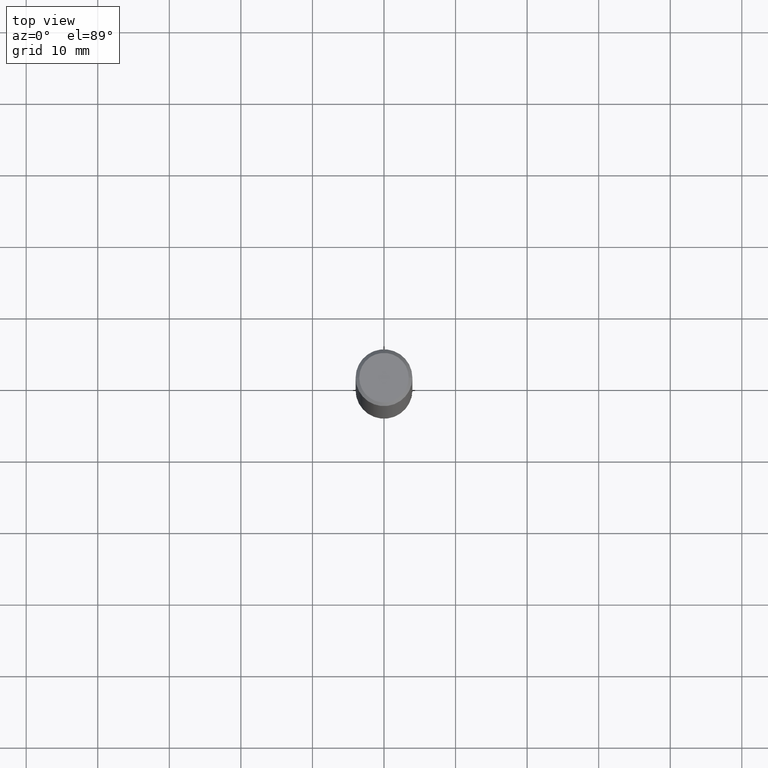
[diagram: clean part render]
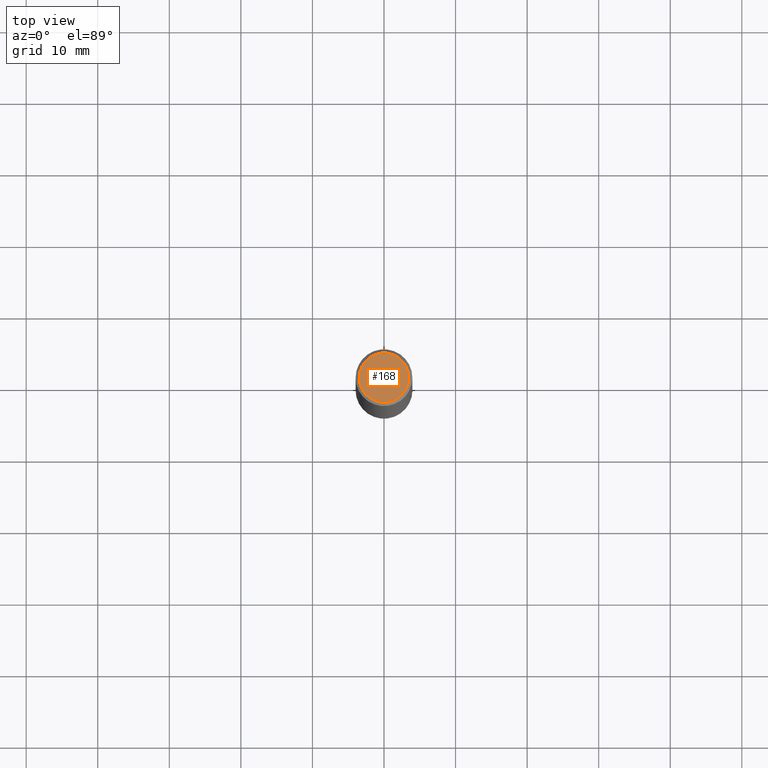
[diagram: same view with one face highlighted and labeled with its STEP entity id]
A machine part, top view. The second image highlights one B-rep face of the part: STEP entity #168.
In plain terms, the highlighted planar face has unit normal (0, -0, -1).
Its self-contained STEP definition (entity closure, byte-faithful):
#4 = ORIENTED_EDGE ( 'NONE', *, *, #436, .T. ) ;
#17 = FACE_OUTER_BOUND ( 'NONE', #345, .T. ) ;
#26 = DIRECTION ( 'NONE',  ( 1.000000000000000000, -6.982962677686266711E-15, 4.876176775795935793E-29 ) ) ;
#62 = DIRECTION ( 'NONE',  ( -2.445468806185136597E-29, 3.491481338843145583E-15, 1.000000000000000000 ) ) ;
#73 = DIRECTION ( 'NONE',  ( -2.445468806185136597E-29, 3.491481338843145583E-15, 1.000000000000000000 ) ) ;
#82 = AXIS2_PLACEMENT_3D ( 'NONE', #392, #73, #290 ) ;
#108 = AXIS2_PLACEMENT_3D ( 'NONE', #474, #62, #26 ) ;
#114 = CARTESIAN_POINT ( 'NONE',  ( 0.1362499999999993994, -1.038262645562514180E-15, 6.957025900226667049E-30 ) ) ;
#121 = PLANE ( 'NONE',  #303 ) ;
#133 = DIRECTION ( 'NONE',  ( 2.438088387897960049E-29, -3.491481338843145188E-15, -1.000000000000000000 ) ) ;
#143 = CIRCLE ( 'NONE', #82, 0.1362499999999993994 ) ;
#168 = ADVANCED_FACE ( 'NONE', ( #17 ), #121, .F. ) ;
#195 = EDGE_CURVE ( 'NONE', #265, #384, #143, .T. ) ;
#225 = CARTESIAN_POINT ( 'NONE',  ( -0.1362499999999993994, 9.863434782231808736E-16, -6.775751096333110456E-30 ) ) ;
#265 = VERTEX_POINT ( 'NONE', #114 ) ;
#274 = DIRECTION ( 'NONE',  ( -1.000000000000000000, 6.982962677686265922E-15, -4.876176775795935793E-29 ) ) ;
#289 = CARTESIAN_POINT ( 'NONE',  ( 9.514286648347494217E-16, 0.1362499999999993994, -4.757143324173764858E-16 ) ) ;
#290 = DIRECTION ( 'NONE',  ( 1.000000000000000000, -6.982962677686266711E-15, 4.876176775795935793E-29 ) ) ;
#303 = AXIS2_PLACEMENT_3D ( 'NONE', #289, #133, #274 ) ;
#345 = EDGE_LOOP ( 'NONE', ( #4, #417 ) ) ;
#384 = VERTEX_POINT ( 'NONE', #225 ) ;
#392 = CARTESIAN_POINT ( 'NONE',  ( 0.000000000000000000, 0.000000000000000000, 0.000000000000000000 ) ) ;
#417 = ORIENTED_EDGE ( 'NONE', *, *, #195, .T. ) ;
#436 = EDGE_CURVE ( 'NONE', #384, #265, #484, .T. ) ;
#474 = CARTESIAN_POINT ( 'NONE',  ( 0.000000000000000000, 0.000000000000000000, 0.000000000000000000 ) ) ;
#484 = CIRCLE ( 'NONE', #108, 0.1362499999999993994 ) ;